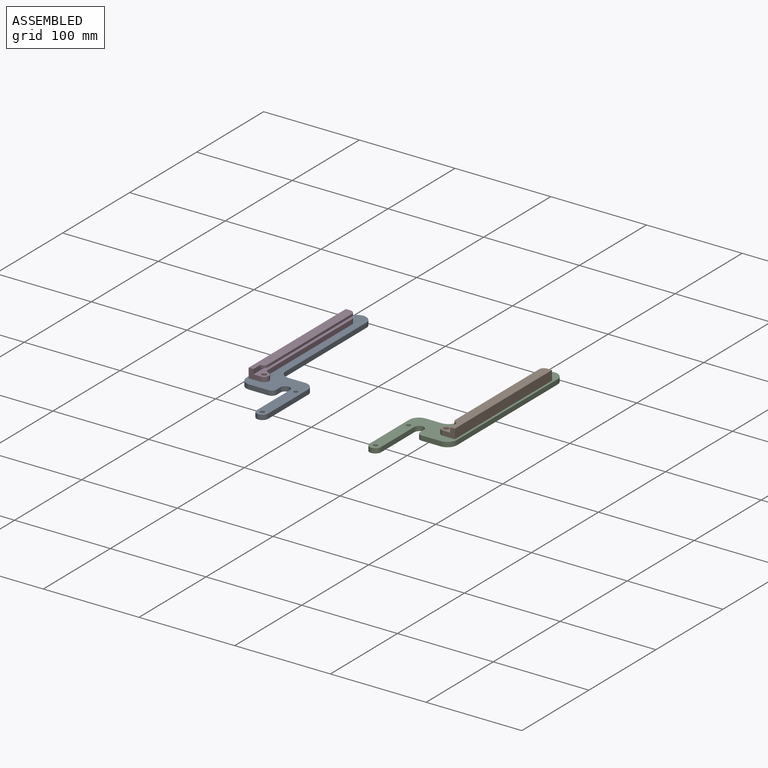
[diagram: assembled view]
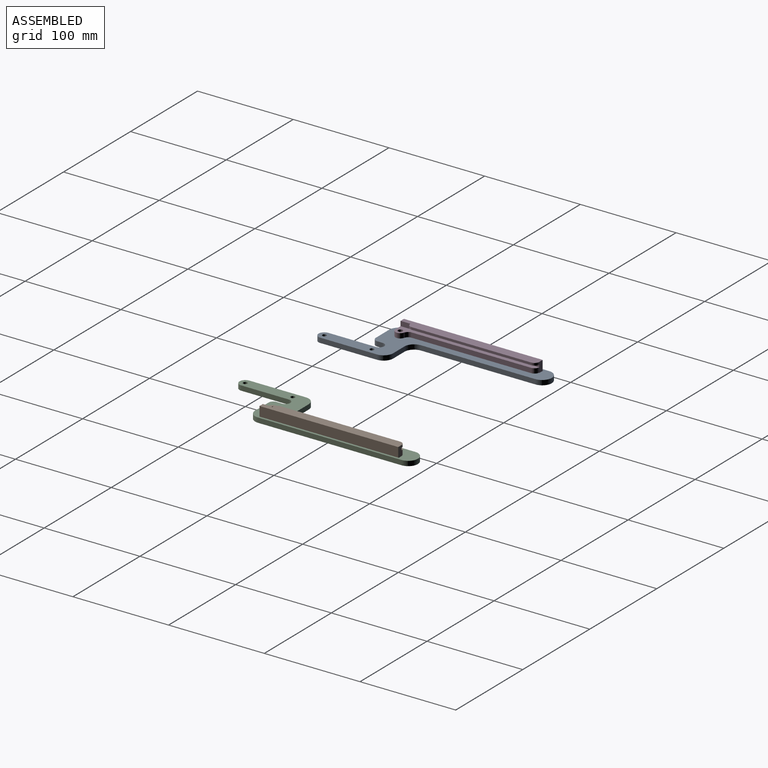
[diagram: assembled view, second angle]
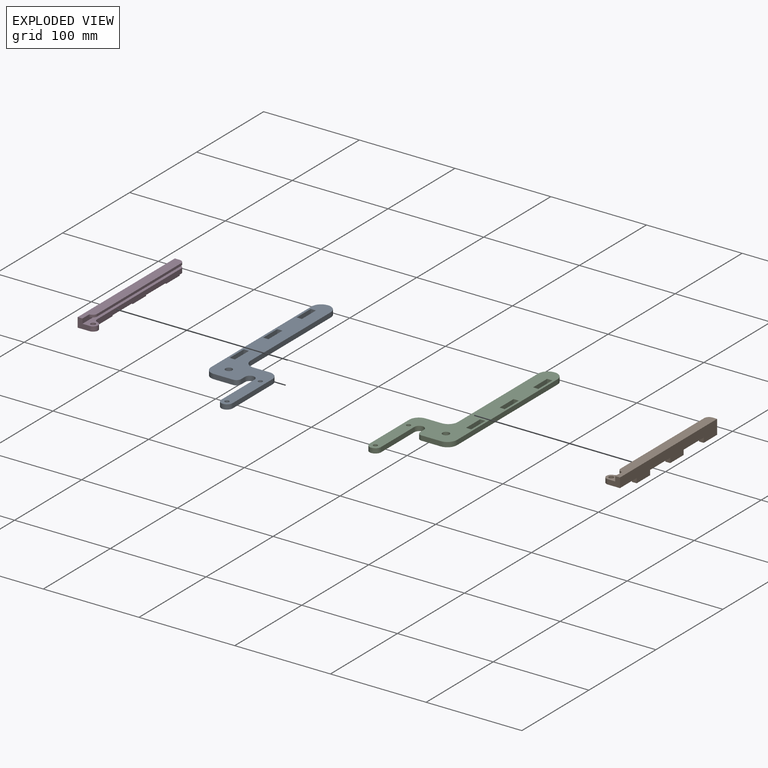
[diagram: exploded view]
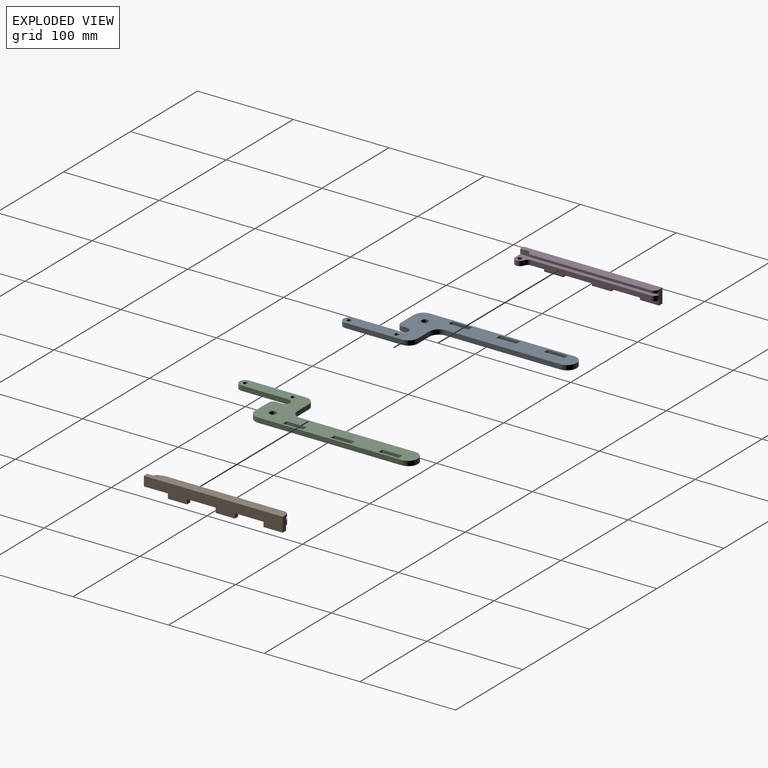
[diagram: exploded view, second angle]
ASSEMBLY  parts=4 mates=2
PART A: 33 faces, bbox 57x215x5 mm
  f0: cylinder r=5mm len=10mm, axis (0,0,-1), area 78.7mm2, adj f1,f30,f31,f32
  f1: plane 49.7x5mm, normal (-1,0,0), area 248.5mm2, adj f0,f2,f31,f32
  f2: cylinder r=6mm len=12mm, axis (0,0,-1), area 94.2mm2, adj f1,f3,f31,f32
  f3: plane 59.16x5mm, normal (1,0,0), area 295.8mm2, adj f2,f4,f31,f32
  f4: cylinder r=10mm len=10mm, axis (0,0,-1), area 78.5mm2, adj f3,f5,f31,f32
  f5: plane 16.84x5mm, normal (0,1,0), area 84.2mm2, adj f4,f6,f31,f32
  f6: cylinder r=10mm len=10mm, axis (0,0,-1), area 78.5mm2, adj f5,f7,f31,f32
  f7: plane 119.84x5mm, normal (1,0,0), area 599.2mm2, adj f6,f8,f31,f32
  f8: cylinder r=10mm len=10mm, axis (0,0,-1), area 78.5mm2, adj f7,f9,f31,f32
  f9: plane 5x0.16mm, normal (0,1,0), area 0.8mm2, adj f8,f10,f31,f32
  f10: cylinder r=10mm len=10mm, axis (0,0,-1), area 78.5mm2, adj f9,f11,f31,f32
  f11: plane 150x5mm, normal (-1,0,0), area 750mm2, adj f10,f12,f31,f32
  f12: cylinder r=10mm len=10mm, axis (0,0,-1), area 78.5mm2, adj f11,f13,f31,f32
  f13: plane 20x5mm, normal (0,-1,0), area 100mm2, adj f12,f14,f31,f32
  f14: cylinder r=5mm len=5mm, axis (0,0,-1), area 39.3mm2, adj f13,f30,f31,f32
  f15: plane 5.5x5mm, normal (0,-1,0), area 27.5mm2, adj f16,f24,f31,f32
  f16: plane 21x5mm, normal (-1,0,0), area 105mm2, adj f15,f17,f31,f32
  f17: plane 5.5x5mm, normal (0,1,0), area 27.5mm2, adj f16,f24,f31,f32
  f18: plane 5.5x5mm, normal (0,-1,0), area 27.5mm2, adj f19,f25,f31,f32
  f19: plane 21x5mm, normal (-1,0,0), area 105mm2, adj f18,f20,f31,f32
  f20: plane 5.5x5mm, normal (0,1,0), area 27.5mm2, adj f19,f25,f31,f32
  f21: plane 5.5x5mm, normal (0,-1,0), area 27.5mm2, adj f22,f26,f31,f32
  f22: plane 21x5mm, normal (-1,0,0), area 105mm2, adj f21,f23,f31,f32
  f23: plane 5.5x5mm, normal (0,1,0), area 27.5mm2, adj f22,f26,f31,f32
  f24: plane 21x5mm, normal (1,0,0), area 105mm2, adj f15,f17,f31,f32
  f25: plane 21x5mm, normal (1,0,0), area 105mm2, adj f18,f20,f31,f32
  f26: plane 21x5mm, normal (1,0,0), area 105mm2, adj f21,f23,f31,f32
  f27: cylinder r=3.6mm len=7.2mm, axis (0,0,-1), area 113.1mm2, adj f31,f32
  f28: cylinder r=2.2mm len=5mm, axis (0,0,-1), area 69.1mm2, adj f31,f32
  f29: cylinder r=2.2mm len=5mm, axis (0,0,-1), area 69.1mm2, adj f31,f32
  f30: plane 5.66x5mm, normal (1,0,0), area 28.3mm2, adj f0,f14,f31,f32
  f31: plane 215x57mm, normal (0,0,1), area 4429.2mm2, adj f0,f1,f2,f3,f4,f5,f6,f7
  f32: plane 215x57mm, normal (0,0,-1), area 4429.2mm2, adj f0,f1,f2,f3,f4,f5,f6,f7
PART B: 27 faces, bbox 15x145x17.7 mm
  f0: plane 134.84x5mm, normal (-1,0,0), area 663.5mm2, adj f2,f20,f23,f24
  f1: plane 125.14x5mm, normal (0,0,1), area 625.7mm2, adj f3,f14,f25,f26
  f2: plane 145x5mm, normal (0,0,1), area 387.9mm2, adj f0,f3,f15,f16,f19,f23
  f3: plane 145x12.66mm, normal (1,0,0), area 771mm2, adj f1,f2,f15,f21,f22,f25,f26
  f4: plane 20x5mm, normal (0,0,1), area 100mm2, adj f11,f12,f13,f14
  f5: plane 20x5mm, normal (0,0,1), area 100mm2, adj f8,f9,f10,f14
  f6: plane 20x5mm, normal (0,0,1), area 100mm2, adj f7,f14,f16,f17
  f7: plane 5x5mm, normal (0,-1,0), area 25mm2, adj f6,f14,f17,f18
  f8: plane 5x5mm, normal (0,1,0), area 25mm2, adj f5,f9,f14,f18
  f9: plane 20x5mm, normal (-1,0,0), area 100mm2, adj f5,f8,f10,f18
  f10: plane 5x5mm, normal (0,-1,0), area 25mm2, adj f5,f9,f14,f18
  f11: plane 5x5mm, normal (0,1,0), area 25mm2, adj f4,f12,f14,f18
  f12: plane 20x5mm, normal (-1,0,0), area 100mm2, adj f4,f11,f13,f18
  f13: plane 5x5mm, normal (0,-1,0), area 25mm2, adj f4,f12,f14,f18
  f14: plane 145x17.66mm, normal (-1,0,0), area 1196mm2, adj f1,f4,f5,f6,f7,f8,f10,f11
  f15: plane 12.58x10mm, normal (0,-1,0), area 87.9mm2, adj f2,f3,f14,f18,f19,f22
  f16: plane 15x5mm, normal (0,1,0), area 75mm2, adj f2,f6,f17,f18,f19,f24,f25
  f17: plane 20x5mm, normal (-1,0,0), area 100mm2, adj f6,f7,f16,f18
  f18: plane 145x15mm, normal (0,0,-1), area 1750mm2, adj f7,f8,f9,f10,f11,f12,f13,f14
  f19: plane 145x10mm, normal (1,0,0), area 1388.5mm2, adj f2,f15,f16,f18,f20,f23,f24
  f20: plane 124.84x2.5mm, normal (0,0,1), area 312.1mm2, adj f0,f19,f23,f24
  f21: cylinder r=2.5mm len=5mm, axis (1,0,0), area 78.5mm2, adj f3,f14
  f22: cylinder r=5.08mm len=10.01mm, axis (1,0,0), area 73.6mm2, adj f3,f14,f15,f26
  f23: cylinder r=5mm len=5mm, axis (1,0,0), area 19.6mm2, adj f0,f2,f19,f20
  f24: cylinder r=5mm len=5mm, axis (1,0,0), area 19.6mm2, adj f0,f16,f19,f20
  f25: cylinder r=5mm len=5mm, axis (1,0,0), area 39.3mm2, adj f1,f3,f14,f16
  f26: cylinder r=5mm len=5mm, axis (1,0,0), area 33.2mm2, adj f1,f3,f14,f22
PART C: same geometry as A
PART D: 27 faces, bbox 15x145x17.7 mm
  f0: plane 134.84x5mm, normal (1,0,0), area 663.5mm2, adj f2,f20,f23,f24
  f1: plane 125.14x5mm, normal (0,0,1), area 625.7mm2, adj f3,f14,f25,f26
  f2: plane 145x5mm, normal (0,0,1), area 387.9mm2, adj f0,f3,f15,f16,f19,f23
  f3: plane 145x12.66mm, normal (-1,0,0), area 771mm2, adj f1,f2,f15,f21,f22,f25,f26
  f4: plane 20x5mm, normal (0,0,1), area 100mm2, adj f11,f12,f13,f14
  f5: plane 20x5mm, normal (0,0,1), area 100mm2, adj f8,f9,f10,f14
  f6: plane 20x5mm, normal (0,0,1), area 100mm2, adj f7,f14,f16,f17
  f7: plane 5x5mm, normal (0,-1,0), area 25mm2, adj f6,f14,f17,f18
  f8: plane 5x5mm, normal (0,1,0), area 25mm2, adj f5,f9,f14,f18
  f9: plane 20x5mm, normal (1,0,0), area 100mm2, adj f5,f8,f10,f18
  f10: plane 5x5mm, normal (0,-1,0), area 25mm2, adj f5,f9,f14,f18
  f11: plane 5x5mm, normal (0,1,0), area 25mm2, adj f4,f12,f14,f18
  f12: plane 20x5mm, normal (1,0,0), area 100mm2, adj f4,f11,f13,f18
  f13: plane 5x5mm, normal (0,-1,0), area 25mm2, adj f4,f12,f14,f18
  f14: plane 145x17.66mm, normal (1,0,0), area 1196mm2, adj f1,f4,f5,f6,f7,f8,f10,f11
  f15: plane 12.58x10mm, normal (0,-1,0), area 87.9mm2, adj f2,f3,f14,f18,f19,f22
  f16: plane 15x5mm, normal (0,1,0), area 75mm2, adj f2,f6,f17,f18,f19,f24,f25
  f17: plane 20x5mm, normal (1,0,0), area 100mm2, adj f6,f7,f16,f18
  f18: plane 145x15mm, normal (0,0,-1), area 1750mm2, adj f7,f8,f9,f10,f11,f12,f13,f14
  f19: plane 145x10mm, normal (-1,0,0), area 1388.5mm2, adj f2,f15,f16,f18,f20,f23,f24
  f20: plane 124.84x2.5mm, normal (0,0,1), area 312.1mm2, adj f0,f19,f23,f24
  f21: cylinder r=2.5mm len=5mm, axis (-1,0,0), area 78.5mm2, adj f3,f14
  f22: cylinder r=5.08mm len=10.01mm, axis (-1,0,0), area 73.6mm2, adj f3,f14,f15,f26
  f23: cylinder r=5mm len=5mm, axis (-1,0,0), area 19.6mm2, adj f0,f2,f19,f20
  f24: cylinder r=5mm len=5mm, axis (-1,0,0), area 19.6mm2, adj f0,f16,f19,f20
  f25: cylinder r=5mm len=5mm, axis (-1,0,0), area 39.3mm2, adj f1,f3,f14,f16
  f26: cylinder r=5mm len=5mm, axis (-1,0,0), area 33.2mm2, adj f1,f3,f14,f22
PLACE A t=(-281.17,8.47,2.5)mm
PLACE B rot(axis=(0,-1,0),90deg) t=(-73.5,5.97,10)mm
PLACE C rot(axis=(0,1,0),180deg) t=(-81.33,8.47,7.5)mm
PLACE D rot(axis=(0,1,0),90deg) t=(-289,5.97,35)mm
MATE planar D.f18 <-> A.f25  axis (-1,0,0) through (-289,18.47,2.5)mm
MATE planar B.f18 <-> C.f25  axis (1,0,0) through (-73.5,18.47,2.5)mm
